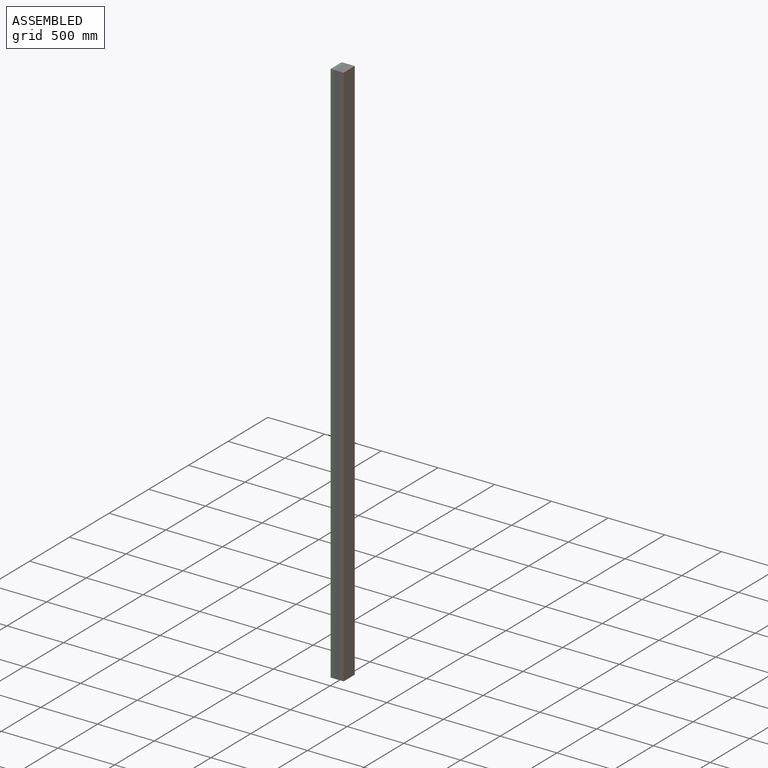
[diagram: assembled view]
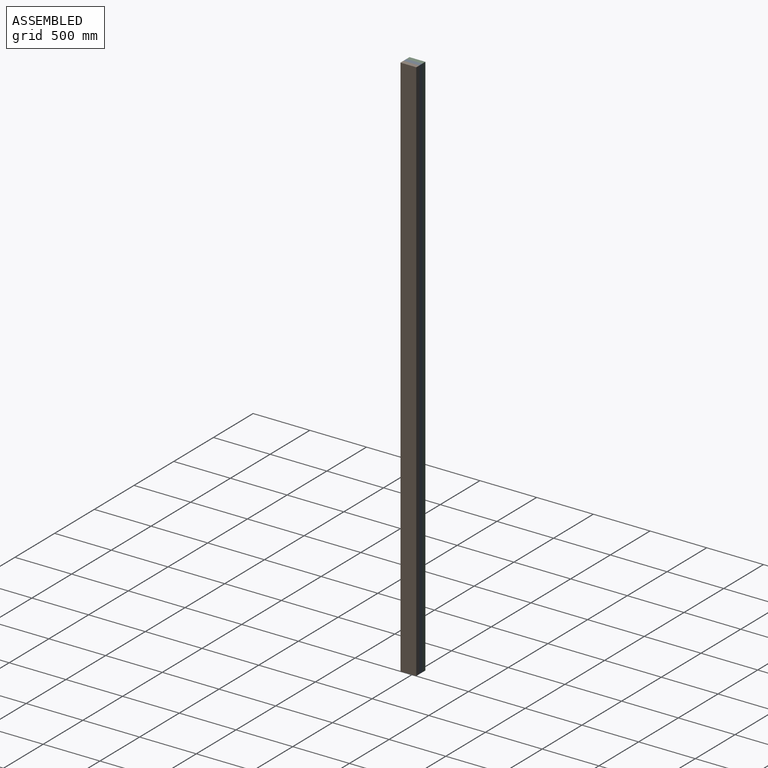
[diagram: assembled view, second angle]
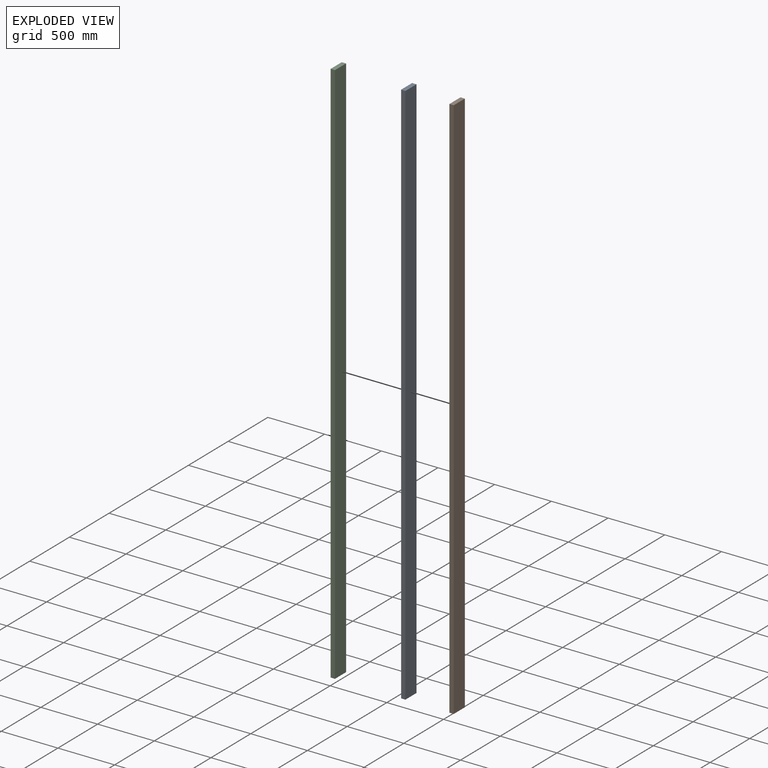
[diagram: exploded view]
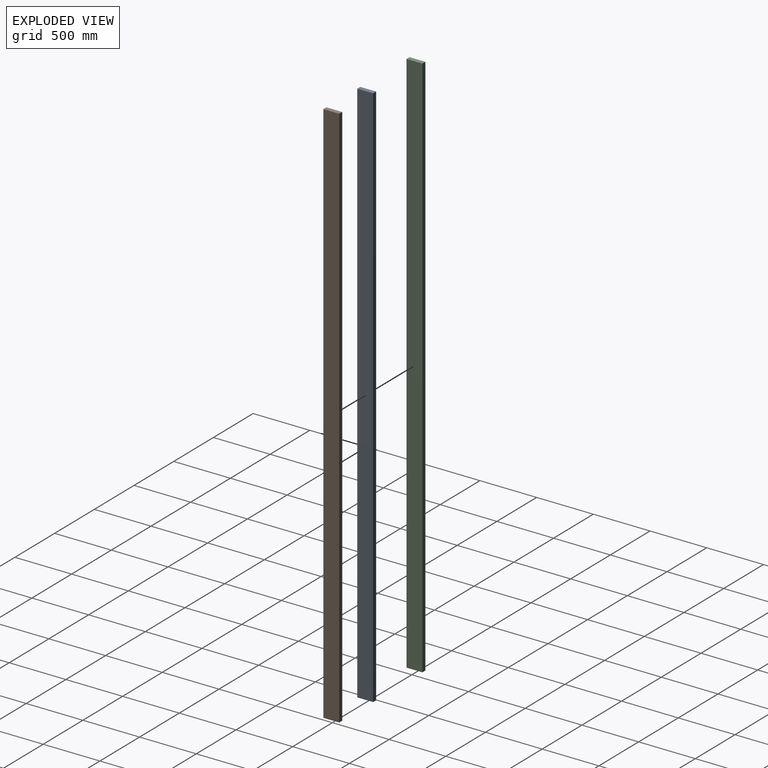
[diagram: exploded view, second angle]
ASSEMBLY  parts=3 mates=2
PART A: 6 faces, bbox 4851.4x139.7x38.1 mm
  f0: plane 4851.4x139.7mm, normal (0,0,1), area 677740.6mm2, adj f2,f3,f4,f5
  f1: plane 4851.4x139.7mm, normal (0,0,-1), area 677740.6mm2, adj f2,f3,f4,f5
  f2: plane 4851.4x38.1mm, normal (0,1,0), area 184838.3mm2, adj f0,f1,f4,f5
  f3: plane 4851.4x38.1mm, normal (0,-1,0), area 184838.3mm2, adj f0,f1,f4,f5
  f4: plane 139.7x38.1mm, normal (-1,0,0), area 5322.6mm2, adj f0,f1,f2,f3
  f5: plane 139.7x38.1mm, normal (1,0,0), area 5322.6mm2, adj f0,f1,f2,f3
PART B: same geometry as A
PART C: same geometry as A
PLACE A rot(axis=(0,1,0),90deg) t=(50.72,-10.85,43.2)mm
PLACE B rot(axis=(0,1,0),90deg) t=(88.82,-10.85,43.2)mm
PLACE C rot(axis=(0,1,0),90deg) t=(12.62,-10.85,43.2)mm
MATE fastened A.f1 <-> C.f0  axis (-1,0,0) through (50.72,59,-2382.5)mm
MATE fastened A.f0 <-> B.f1  axis (1,0,0) through (88.82,59,-2382.5)mm
